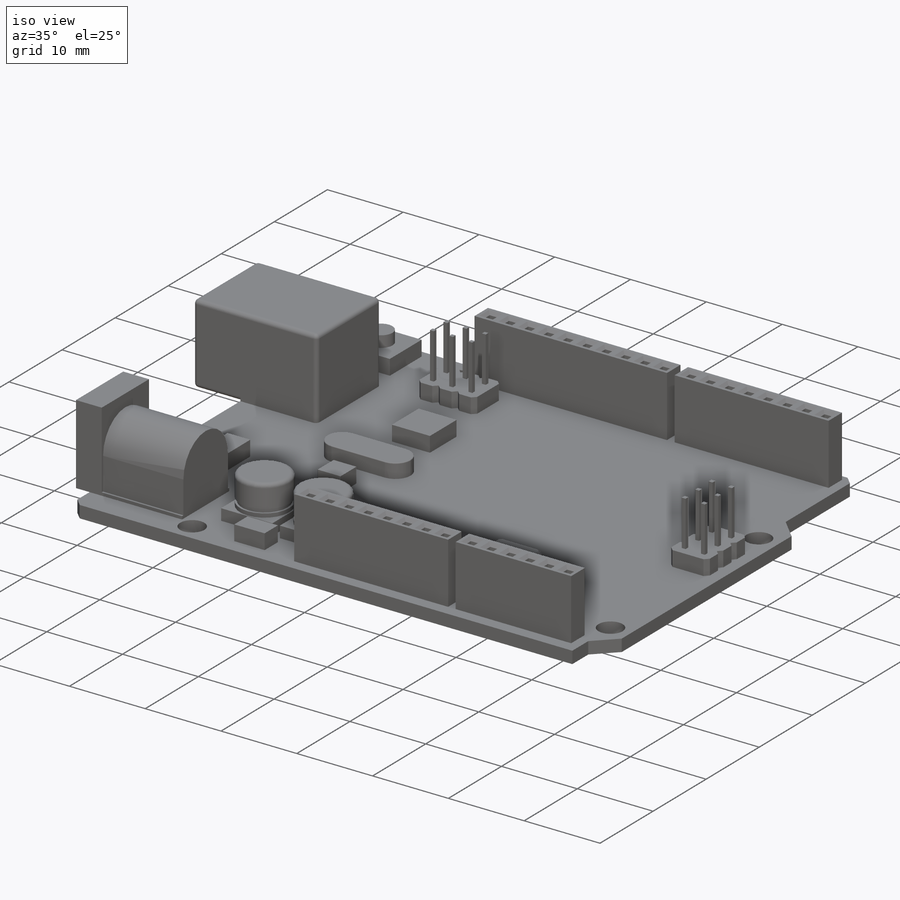
[diagram: iso view]
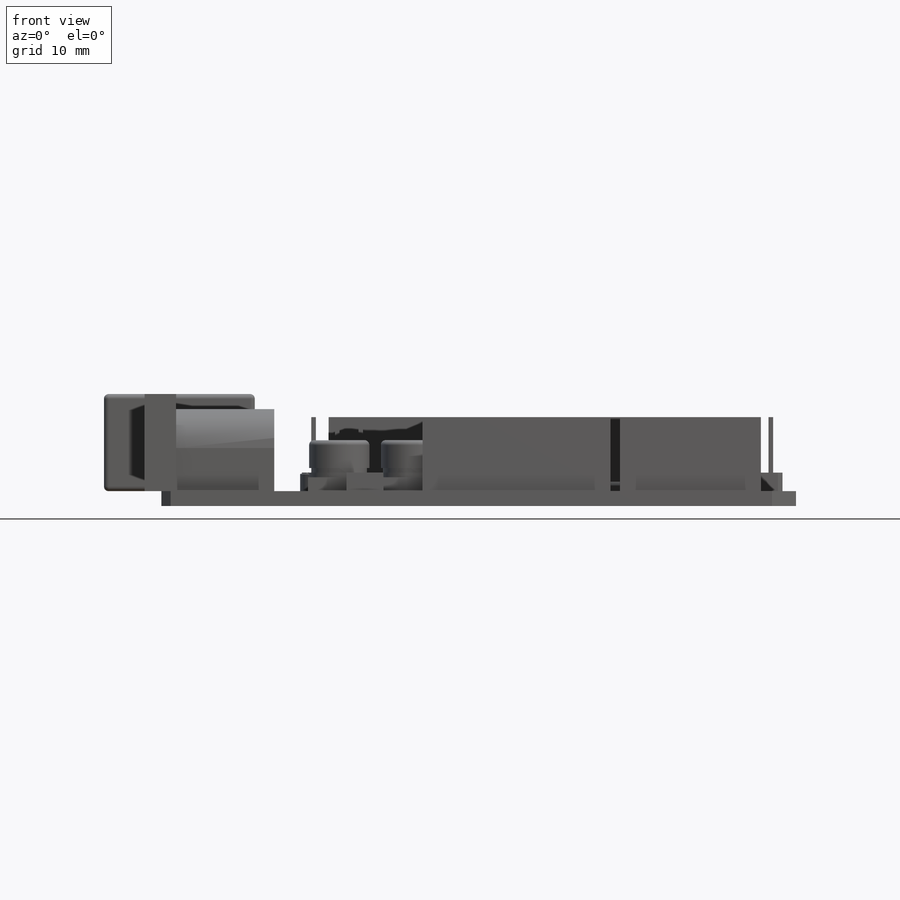
[diagram: front view]
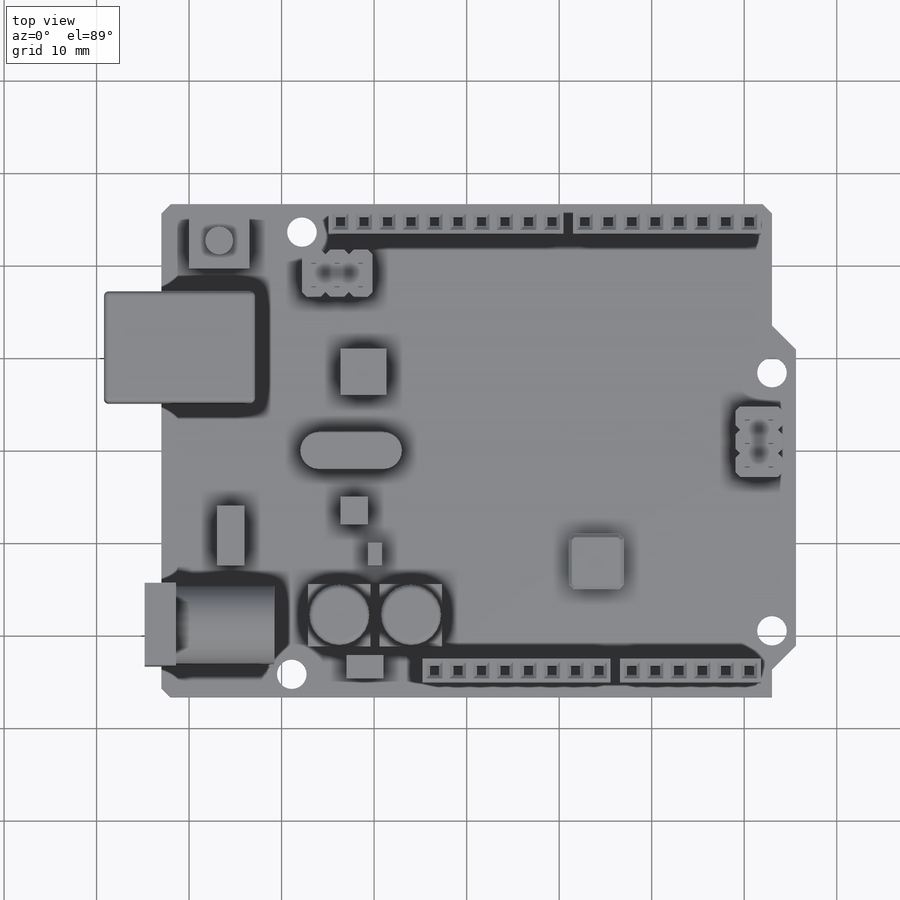
[diagram: top view]
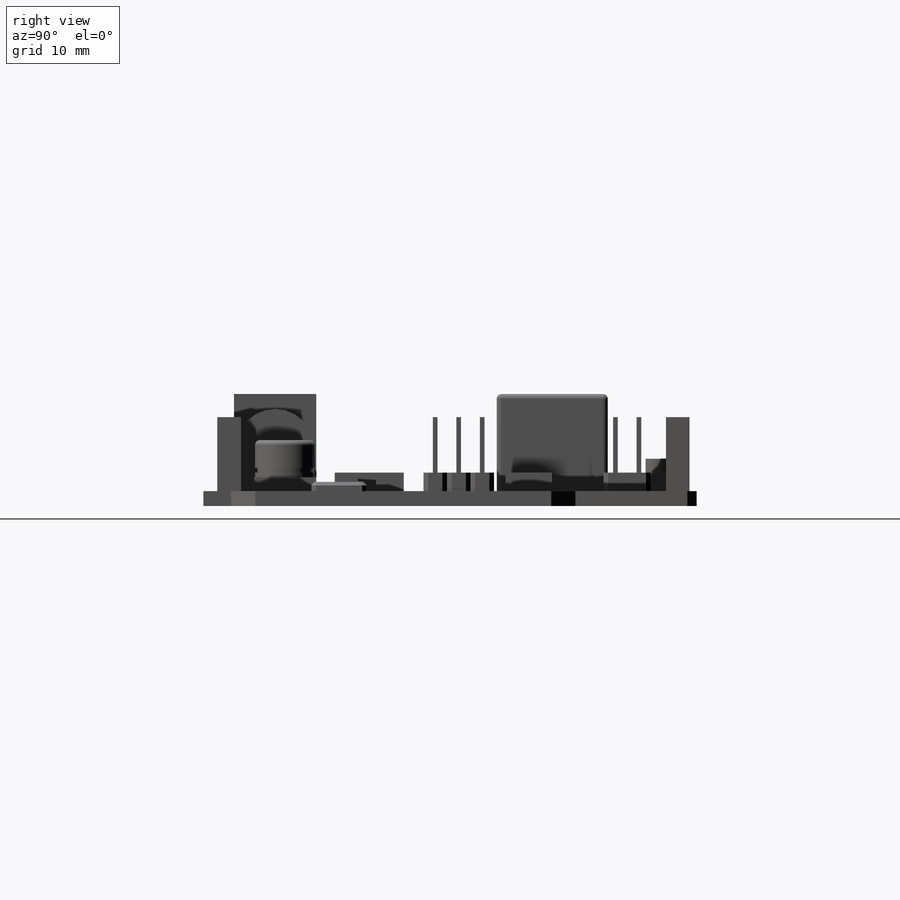
[diagram: right view]
SOLIDWORKS PART (.sldprt)
format: sldprt  version: not decoded by parser v0  size: 1,352,192 bytes
history: native  units: mm
features: sketch x16, extrude x12, fillet x5, cut_extrude x4, chamfer x2, material x1, plane x1 (+13 scaffold rows collapsed)
feature tree (54):
  scaffold x13  (default folders/planes/origin — collapsed)
  material  "Matériau <non spécifié>"
  plane  "Decoupe"  Offset=4.1mm
  sketch  "Sketch1"  dims[c1.D7=3.2mm c1.D1=66.0mm c1.D2=53.3mm c1.D3=68.6mm c1.D4=32.0mm c1.D5=~3.676955mm c2.D5=45.0deg c2.D6=2.6mm c3.D6=45.0deg c4.D6=3.0mm c4.D8=2.5mm c4.D9=27.9mm c4.D10=4.7mm c4.D11=50.8mm c4.D12=14.0mm c4.D16=2.5mm c5.D12=51.9mm c5.D17=1.6mm c5.D18=48.3mm c6.D17=1.1mm c6.D18=15.2mm c6.D8=2.5mm]
  extrude  "Boss-Extrude1"  Depth=1.6mm
  sketch  "Sketch2"  dims[D1=16.3mm D2=12.0mm D3=6.2mm D4=9.6mm D5=8.9mm D6=14.0mm D7=1.8mm D8=3.3mm]
  extrude  "Boss-Extrude2"  Depth=10.5mm
  sketch  "Sketch4"  dims[D1=2.5mm D2=7.5mm D3=9.0mm D4=1.5mm D5=2.5mm D6=1.2mm D7=1.2mm]
  cut_extrude  "Cut-Extrude1"  Depth=10mm
  sketch  "Sketch5"  dims[D1=7.0mm D2=1.0mm]
  cut_extrude  "Cut-Extrude2"  Depth=10mm
  sketch  "Sketch6"  dims[c1.D2=4.2mm c1.D1=0.25mm c2.D2=0.4mm c2.D3=4.667mm]
  cut_extrude  "Cut-Extrude3"  Depth=3.4mm
  sketch  "Sketch7"  dims[c1.D1=20.65mm c1.D2=2.54mm c1.D3=23.0mm c1.D4=1.0mm c1.D5=1.0mm c1.D6=0.5mm c1.D7=1.0mm c1.D8=1.0mm c1.D10=15.7mm c1.D11=23.0mm c1.D12=1.0mm c1.D13=1.0mm c1.D14=1.0mm c1.D15=1.0mm c1.D16=1.0mm c1.D17=1.0mm c1.D18=1.0mm c1.D20=~1.200152mm c1.D21=2.54mm c2.D10=1.27mm c2.D22=1.27mm c2.D18=1.5mm c2.D11=48.5mm c2.D3=1.27mm c2.D13=1.27mm c2.D15=15.24mm c3.D13=1.0mm c3.D15=1.27mm c3.D16=2.54mm c3.D17=2.54mm c3.D6=1.27mm c3.D7=2.54mm c3.D8=1.27mm c3.D23=1.27mm c3.D24=2.54mm c3.D19=6.0 c3.D14=8.0 c3.D5=8.0 c3.D9=10.0]
  extrude  "Boss-Extrude3"  Depth=8mm
  sketch  "Sketch8"  dims[D1=6.75mm D2=1.0mm D3=1.75mm D4=1.0mm]
  extrude  "Boss-Extrude4"  Depth=1.5mm
  sketch  "Sketch9"  dims[D1=6.5mm]
  extrude  "Boss-Extrude5"  Depth=4mm
  sketch  "Sketch11"  dims[c1.D3=0.5mm c1.D29=0.5mm c2.D3=0.5mm c2.D7=0.5mm c2.D29=0.5mm c2.D1=2.0mm c2.D2=5.08mm c3.D3=0.5mm c3.D8=0.5mm c3.D9=0.5mm c3.D10=0.5mm c3.D11=0.5mm c3.D12=0.5mm c3.D13=0.5mm c3.D14=0.5mm c3.D15=0.5mm c3.D16=0.5mm c3.D17=0.5mm c3.D18=0.5mm c3.D19=0.5mm c3.D20=0.5mm c3.D21=0.5mm c3.D22=0.5mm c3.D23=7.5mm c3.D24=19.0mm c3.D25=0.5mm c3.D26=0.5mm c3.D27=0.5mm c3.D28=0.5mm c3.D29=0.5mm c3.D30=0.5mm c3.D31=0.5mm c3.D32=0.5mm c3.D33=4.0mm c3.D34=0.5mm c3.D35=0.5mm c3.D36=0.5mm c3.D37=0.5mm c3.D38=0.5mm c3.D39=0.5mm c3.D40=0.5mm c3.D41=0.5mm c3.D42=0.5mm c3.D43=0.5mm c3.D44=0.5mm c3.D45=0.5mm c3.D46=0.5mm c3.D47=0.5mm c3.D48=0.5mm c3.D49=0.5mm c3.D50=2.0mm c3.D51=2.0mm c3.D52=1.0mm c4.D8=0.5mm c4.D14=0.5mm c4.D16=0.5mm c4.D22=0.5mm c4.D25=0.5mm c4.D26=0.5mm c4.D27=0.5mm c4.D28=0.5mm c4.D29=0.5mm c4.D30=0.5mm c4.D31=0.5mm c4.D32=0.5mm c4.D33=0.5mm c4.D34=0.5mm c4.D35=0.5mm c4.D36=0.5mm c4.D37=0.5mm c4.D38=0.5mm c4.D39=0.5mm c4.D40=0.5mm c5.D8=4.0mm c5.D14=2.0mm c5.D16=4.0mm c5.D22=2.0mm c5.D28=0.5mm c5.D29=0.5mm c5.D30=0.5mm c5.D31=0.5mm c5.D32=0.5mm c5.D33=0.5mm c5.D34=0.5mm c5.D35=0.5mm c5.D36=4.0mm c5.D37=2.0mm c5.D38=0.5mm c5.D39=0.5mm c5.D40=0.5mm c5.D41=0.5mm c5.D42=0.5mm c5.D43=0.5mm c5.D44=0.5mm c5.D45=0.5mm c6.D14=4.0mm c6.D8=7.62mm c7.D14=4.0mm c7.D16=5.08mm c7.D22=2.54mm c7.D25=2.54mm c7.D26=0.5mm c7.D27=~1.291056mm c8.D26=0.5mm c8.D27=0.5mm c8.D28=18.6mm c8.D29=7.62mm c8.D3=0.5mm c8.D4=0.5mm]
  extrude  "Boss-Extrude7"  Depth=2mm
  sketch  "Sketch12"  dims[c1.D1=0.5mm c1.D2=2.54mm c1.D4=0.5mm c1.D5=2.54mm c1.D7=2.54mm c1.D8=2.54mm c2.D2=2.54mm c2.D8=2.54mm c2.D3=3.0 c2.D6=3.0]
  extrude  "Boss-Extrude8"  [1 undecoded]
  sketch  "Sketch13"  dims[D1=6.0mm D2=12.0mm D3=14.0mm D4=6.0mm]
  extrude  "Boss-Extrude9"  Depth=1mm
  sketch  "Esquisse1"  dims[c1.D1=~2.504699mm c2.D1=90.0deg c3.D1=4.0mm c3.D2=15.0mm c3.D3=11.0mm]
  extrude  "Boss.-Extrude10"  Depth=3.5mm
  sketch  "Esquisse3"  dims[D1=6.5mm D2=6.0mm]
  cut_extrude  "Enlèv. mat.-Extru.1"  Depth=0.5mm
  sketch  "Esquisse4"  dims[D1=6.0mm D2=6.5mm D3=3.0mm D4=1.0mm]
  extrude  "Boss.-Extru.1"  Depth=3.6mm
  sketch  "Esquisse5"  dims[D1=3.0mm]
  extrude  "Boss.-Extru.2"  Depth=5.1mm
  sketch  "Esquisse6"  dims[D1=4.0mm D2=2.5mm D3=2.0mm D4=20.0mm D5=1.5mm D6=2.5mm D7=2.0mm D8=0.25mm D9=0.25mm D10=6.0mm D11=3.0mm D12=6.5mm D13=2.0mm D14=3.0mm D15=3.0mm D16=5.0mm D17=4.0mm]
  extrude  "Boss.-Extru.3"  Depth=3.6mm
  chamfer  "Chamfer1"  Distance=0.375mm Angle=45deg
  chamfer  "Chamfer2"  Distance=0.375mm Angle=45deg
  fillet  "Fillet1"  Radius=0.5mm
  fillet  "Fillet2"  Radius=0.5mm
  fillet  "Congé1"  Radius=2mm
  fillet  "Congé2"  Radius=0.1mm
  fillet  "Congé3"  Radius=0.5mm
decode coverage: 38 of 39 modeling features carry decoded parameters
note: ~ marks probable driven/reference dimensions
note: 1 parameter value undecoded
note: suppression state not decoded; provenance and decode notes live in map.json
